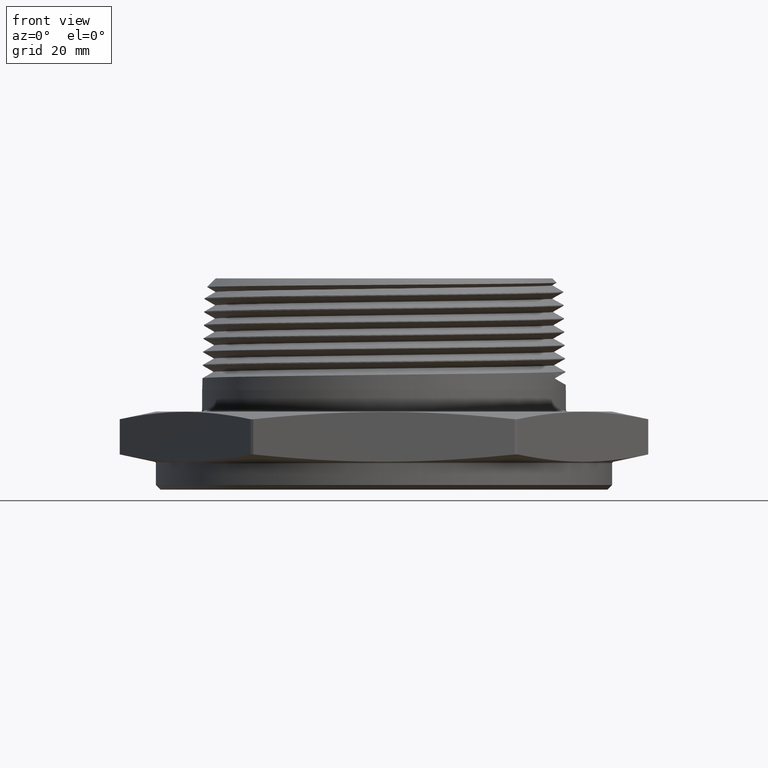
[diagram: clean part render]
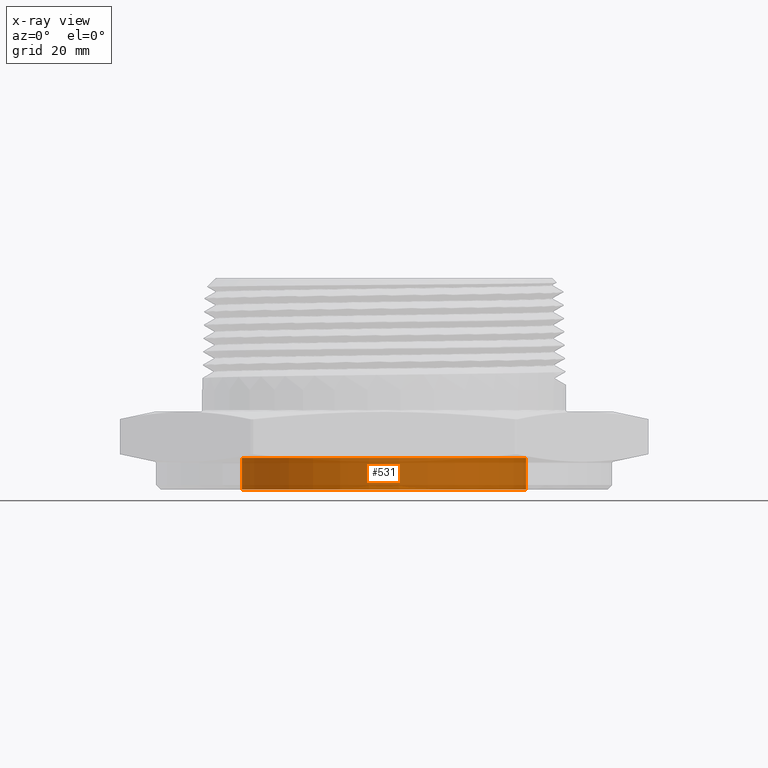
[diagram: x-ray — body ghosted, one internal face saturated and labeled with its STEP entity id]
A machine part, front view, then the same camera in x-ray: the body is ghosted and one INTERNAL B-rep face — a face not visible from any outside direction — is saturated and labeled: STEP entity #531.
In plain terms, the highlighted cylindrical surface (partial cylindrical patch) has radius 23.5712 mm, axis along (-0, -0, -1).
Its self-contained STEP definition (entity closure, byte-faithful):
#531 = ADVANCED_FACE ( 'NONE', ( #814 ), #821, .F. ) ;
#599 = VERTEX_POINT ( 'NONE', #7017 ) ;
#609 = VERTEX_POINT ( 'NONE', #7002 ) ;
#615 = VERTEX_POINT ( 'NONE', #6996 ) ;
#616 = VERTEX_POINT ( 'NONE', #6993 ) ;
#766 = EDGE_LOOP ( 'NONE', ( #779, #780, #781, #782 ) ) ;
#779 = ORIENTED_EDGE ( 'NONE', *, *, #3698, .F. ) ;
#780 = ORIENTED_EDGE ( 'NONE', *, *, #3696, .T. ) ;
#781 = ORIENTED_EDGE ( 'NONE', *, *, #3703, .T. ) ;
#782 = ORIENTED_EDGE ( 'NONE', *, *, #3701, .F. ) ;
#814 = FACE_OUTER_BOUND ( 'NONE', #766, .T. ) ;
#821 = CYLINDRICAL_SURFACE ( 'NONE', #3710, 0.9280000000000000500 ) ;
#3696 = EDGE_CURVE ( 'NONE', #609, #615, #6056, .T. ) ;
#3698 = EDGE_CURVE ( 'NONE', #609, #599, #6063, .T. ) ;
#3701 = EDGE_CURVE ( 'NONE', #599, #616, #6061, .T. ) ;
#3703 = EDGE_CURVE ( 'NONE', #615, #616, #6070, .T. ) ;
#3710 = AXIS2_PLACEMENT_3D ( 'NONE', #7888, #7887, #7892 ) ;
#3800 = AXIS2_PLACEMENT_3D ( 'NONE', #6866, #6867, #6868 ) ;
#3802 = AXIS2_PLACEMENT_3D ( 'NONE', #6879, #6880, #6881 ) ;
#6056 = LINE ( 'NONE', #6856, #6062 ) ;
#6061 = LINE ( 'NONE', #6871, #6069 ) ;
#6062 = VECTOR ( 'NONE', #6852, 39.37007874015748100 ) ;
#6063 = CIRCLE ( 'NONE', #3800, 0.9280000000000000500 ) ;
#6069 = VECTOR ( 'NONE', #6865, 39.37007874015748100 ) ;
#6070 = CIRCLE ( 'NONE', #3802, 0.9280000000000000500 ) ;
#6852 = DIRECTION ( 'NONE',  ( -3.343854012755361800E-017, -0.0000000000000000000, -1.000000000000000000 ) ) ;
#6856 = CARTESIAN_POINT ( 'NONE',  ( 0.9280000000000000500, 1.136472229608744000E-016, -0.1800000000000000200 ) ) ;
#6865 = DIRECTION ( 'NONE',  ( -3.343854012755361800E-017, -0.0000000000000000000, -1.000000000000000000 ) ) ;
#6866 = CARTESIAN_POINT ( 'NONE',  ( 1.059071558760608600E-017, 0.0000000000000000000, 0.02685039370078738000 ) ) ;
#6867 = DIRECTION ( 'NONE',  ( -3.343854012755361800E-017, -0.0000000000000000000, -1.000000000000000000 ) ) ;
#6868 = DIRECTION ( 'NONE',  ( -1.000000000000000000, 0.0000000000000000000, 3.219783128308499300E-017 ) ) ;
#6871 = CARTESIAN_POINT ( 'NONE',  ( -0.9280000000000000500, 0.0000000000000000000, -0.1799999999999999700 ) ) ;
#6879 = CARTESIAN_POINT ( 'NONE',  ( 3.673940397442043000E-018, 0.0000000000000000000, -0.1800000000000000200 ) ) ;
#6880 = DIRECTION ( 'NONE',  ( -3.343854012755361800E-017, -0.0000000000000000000, -1.000000000000000000 ) ) ;
#6881 = DIRECTION ( 'NONE',  ( -1.000000000000000000, 0.0000000000000000000, 3.679752146638285500E-017 ) ) ;
#6993 = CARTESIAN_POINT ( 'NONE',  ( -0.9280000000000000500, 0.0000000000000000000, -0.1799999999999999900 ) ) ;
#6996 = CARTESIAN_POINT ( 'NONE',  ( 0.9280000000000000500, 1.136472229608744000E-016, -0.1800000000000000500 ) ) ;
#7002 = CARTESIAN_POINT ( 'NONE',  ( 0.9280000000000000500, 1.136472229608744000E-016, 0.02685039370078735200 ) ) ;
#7017 = CARTESIAN_POINT ( 'NONE',  ( -0.9280000000000000500, 0.0000000000000000000, 0.02685039370078741100 ) ) ;
#7887 = DIRECTION ( 'NONE',  ( -3.343854012755361800E-017, -0.0000000000000000000, -1.000000000000000000 ) ) ;
#7888 = CARTESIAN_POINT ( 'NONE',  ( 3.673940397442043800E-018, 0.0000000000000000000, -0.1799999999999999900 ) ) ;
#7892 = DIRECTION ( 'NONE',  ( -1.000000000000000000, 0.0000000000000000000, 3.679752146638285500E-017 ) ) ;